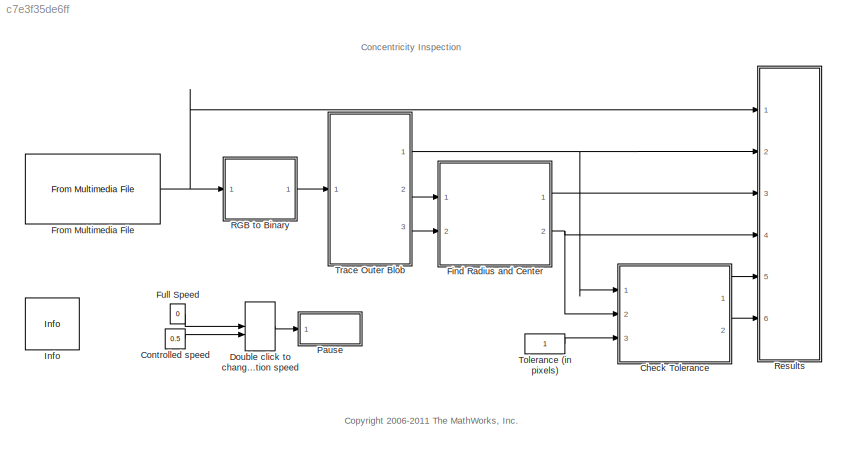
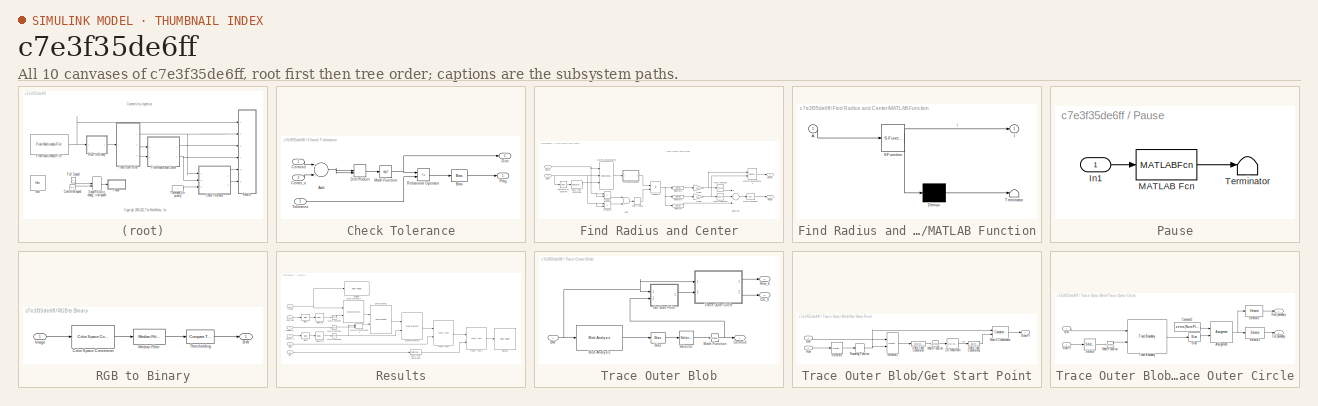
[diagram: thumbnail index - all 10 canvases of the model, root first then tree order]
MODEL slx_c7e3f35de6ff
KIND model
CONFIG AbsTol = auto
CONFIG FixedStep = auto
CONFIG MaxStep = auto
CONFIG MinStep = auto
CONFIG RelTol = 1e-3
CONFIG SampleTimeConstraint = Unconstrained
CONFIG Solver = FixedStepDiscrete
CONFIG SolverMode = Auto
CONFIG SolverName = FixedStepDiscrete
CONFIG StartTime = 0.0
CONFIG StopTime = inf
WORKSPACE source: MATLAB code (in-file)
WORKSPACE NumPts = 250
BLOCK [SubSystem] Check Tolerance
  Ports = [3, 2]
  RequestExecContextInheritance = off
  Variant = off
BLOCK [Sum] Check Tolerance/Add
  InputSameDT = off
  Inputs = +-
  OutDataTypeStr = Inherit: Inherit via internal rule
  Ports = [2, 1]
  SaturateOnIntegerOverflow = off
BLOCK [Bias] Check Tolerance/Bias
  Bias = 1
  SaturateOnIntegerOverflow = off
BLOCK [Inport] Check Tolerance/Center_o
  IconDisplay = Port number
  Port = 2
BLOCK [Inport] Check Tolerance/Centroid
  IconDisplay = Port number
BLOCK [Outport] Check Tolerance/Dist
  IconDisplay = Port number
  Port = 2
BLOCK [DotProduct] Check Tolerance/Dot Product
  OutDataTypeStr = Inherit: Inherit via internal rule
BLOCK [Outport] Check Tolerance/Flag
  IconDisplay = Port number
BLOCK [Math] Check Tolerance/Math Function
  Operator = sqrt
  Ports = [1, 1]
BLOCK [RelationalOperator] Check Tolerance/Relational Operator
  InputSameDT = off
  Operator = <=
  OutDataTypeStr = fixdt(1,32)
  Ports = [2, 1]
BLOCK [Inport] Check Tolerance/Tolerance
  IconDisplay = Port number
  Port = 3
BLOCK [Constant] Controlled speed
  Value = 0.5
  VectorParams1D = off
BLOCK [ManualSwitch] Double click to change the simulation speed
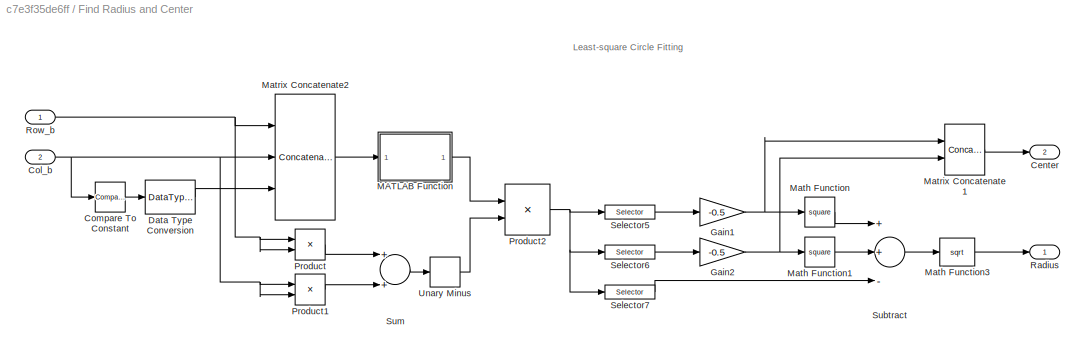
BLOCK [SubSystem] Find Radius and Center
  Ports = [2, 2]
  RequestExecContextInheritance = off
  Variant = off
BLOCK [Outport] Find Radius and Center/Center
  IconDisplay = Port number
  Port = 2
BLOCK [Inport] Find Radius and Center/Col_b
  IconDisplay = Port number
  Port = 2
BLOCK [Reference] Find Radius and Center/Compare To Constant  REF=simulink/Logic and Bit
Operations/Compare
To Constant
  Ports = [1, 1]
  SourceBlock = simulink/Logic and Bit\nOperations/Compare\nTo Constant
  SourceType = Compare To Constant
BLOCK [DataTypeConversion] Find Radius and Center/Data Type Conversion
  RndMeth = Floor
  SaturateOnIntegerOverflow = off
BLOCK [Gain] Find Radius and Center/Gain1
  Gain = -0.5
  OutDataTypeStr = Inherit: Inherit via internal rule
  ParamDataTypeStr = Inherit: Inherit via internal rule
  SaturateOnIntegerOverflow = off
BLOCK [Gain] Find Radius and Center/Gain2
  Gain = -0.5
  OutDataTypeStr = Inherit: Inherit via internal rule
  ParamDataTypeStr = Inherit: Inherit via internal rule
  SaturateOnIntegerOverflow = off
BLOCK [SubSystem] Find Radius and Center/MATLAB Function
  ErrorFcn = Stateflow.Translate.translate
  PermitHierarchicalResolution = ExplicitOnly
  Ports = [1, 1]
  RequestExecContextInheritance = off
  SFBlockType = MATLAB Function
  TreatAsAtomicUnit = on
  Variant = off
BLOCK [Demux] Find Radius and Center/MATLAB Function/ Demux 
  Outputs = 1
  Ports = [1, 1]
BLOCK [S-Function] Find Radius and Center/MATLAB Function/ SFunction 
  EnableBusSupport = off
  FunctionName = sf_sfun
  PortCounts = [1 2]
  Ports = [1, 2]
  SFunctionDeploymentMode = off
  Tag = Stateflow S-Function vipconcentricity 2
BLOCK [Terminator] Find Radius and Center/MATLAB Function/ Terminator 
BLOCK [Inport] Find Radius and Center/MATLAB Function/A
  IconDisplay = Port number
BLOCK [Outport] Find Radius and Center/MATLAB Function/I
  IconDisplay = Port number
BLOCK [Math] Find Radius and Center/Math Function
  Operator = square
  Ports = [1, 1]
BLOCK [Math] Find Radius and Center/Math Function1
  Operator = square
  Ports = [1, 1]
BLOCK [Math] Find Radius and Center/Math Function3
  Operator = sqrt
  Ports = [1, 1]
BLOCK [Concatenate] Find Radius and Center/Matrix Concatenate1
  Mode = Multidimensional array
  Ports = [2, 1]
BLOCK [Concatenate] Find Radius and Center/Matrix Concatenate2
  ConcatenateDimension = 2
  Mode = Multidimensional array
  NumInputs = 3
  Ports = [3, 1]
BLOCK [Product] Find Radius and Center/Product
  InputSameDT = off
  OutDataTypeStr = Inherit: Inherit via internal rule
  Ports = [2, 1]
  SaturateOnIntegerOverflow = off
BLOCK [Product] Find Radius and Center/Product1
  InputSameDT = off
  OutDataTypeStr = Inherit: Inherit via internal rule
  Ports = [2, 1]
  SaturateOnIntegerOverflow = off
BLOCK [Product] Find Radius and Center/Product2
  InputSameDT = off
  Multiplication = Matrix(*)
  OutDataTypeStr = Inherit: Inherit via internal rule
  Ports = [2, 1]
  SaturateOnIntegerOverflow = off
BLOCK [Outport] Find Radius and Center/Radius
  IconDisplay = Port number
BLOCK [Inport] Find Radius and Center/Row_b
  IconDisplay = Port number
BLOCK [Selector] Find Radius and Center/Selector5
  IndexOptions = Index vector (dialog)
  Indices = (1)
  InputPortWidth = 3
  OutputSizes = 1
  Ports = [1, 1]
BLOCK [Selector] Find Radius and Center/Selector6
  IndexOptions = Index vector (dialog)
  Indices = (2)
  InputPortWidth = 3
  OutputSizes = 1
  Ports = [1, 1]
BLOCK [Selector] Find Radius and Center/Selector7
  IndexOptions = Index vector (dialog)
  Indices = (3)
  InputPortWidth = 3
  OutputSizes = 1
  Ports = [1, 1]
BLOCK [Sum] Find Radius and Center/Subtract
  InputSameDT = off
  Inputs = ++-
  OutDataTypeStr = Inherit: Inherit via internal rule
  Ports = [3, 1]
  SaturateOnIntegerOverflow = off
BLOCK [Sum] Find Radius and Center/Sum
  InputSameDT = off
  OutDataTypeStr = Inherit: Inherit via internal rule
  Ports = [2, 1]
  SaturateOnIntegerOverflow = off
BLOCK [UnaryMinus] Find Radius and Center/Unary Minus
BLOCK [Reference] From Multimedia File  REF=dspvision/From Multimedia File
  Ports = [0, 1]
  SourceBlock = dspvision/From Multimedia File
  SourceType = From Multimedia File
BLOCK [Constant] Full Speed
  Value = 0
  VectorParams1D = off
BLOCK [Reference] Info  REF=vipmisc/Info
  Ports = []
  SourceBlock = vipmisc/Info
  SourceType = Info
BLOCK [SubSystem] Pause
  Ports = [1]
  RequestExecContextInheritance = off
  SimViewingDevice = on
  TreatAsAtomicUnit = on
  Variant = off
BLOCK [Inport] Pause/In1
  IconDisplay = Port number
BLOCK [MATLABFcn] Pause/MATLAB Fcn
  MATLABFcn = vipsimdelay(u)
  Ports = [1, 1]
BLOCK [Terminator] Pause/Terminator
BLOCK [SubSystem] RGB to Binary
  Ports = [1, 1]
  RequestExecContextInheritance = off
  Variant = off
BLOCK [Outport] RGB to Binary/BW
  IconDisplay = Port number
BLOCK [Reference] RGB to Binary/Color Space Conversion  REF=visionconversions/Color Space
 Conversion
  Ports = [1, 1]
  SourceBlock = visionconversions/Color Space\n Conversion
  SourceType = Color Space Conversion
BLOCK [Inport] RGB to Binary/Image
  IconDisplay = Port number
BLOCK [Reference] RGB to Binary/Median Filter  REF=visionanalysis/Median Filter
  Ports = [1, 1]
  SourceBlock = visionanalysis/Median Filter
  SourceType = Median Filter
BLOCK [Reference] RGB to Binary/Thresholding  REF=simulink/Logic and Bit
Operations/Compare
To Constant
  Ports = [1, 1]
  SourceBlock = simulink/Logic and Bit\nOperations/Compare\nTo Constant
  SourceType = Compare To Constant
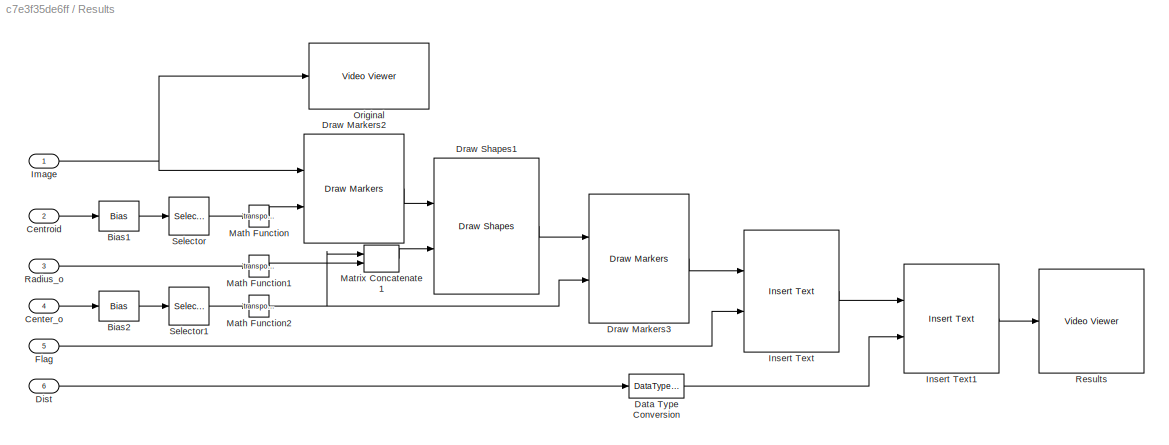
BLOCK [SubSystem] Results
  Ports = [6]
  RequestExecContextInheritance = off
  Variant = off
BLOCK [Bias] Results/Bias1
  Bias = +1
  SaturateOnIntegerOverflow = off
BLOCK [Bias] Results/Bias2
  Bias = +1
  SaturateOnIntegerOverflow = off
BLOCK [Inport] Results/Center_o
  IconDisplay = Port number
  Port = 4
BLOCK [Inport] Results/Centroid
  IconDisplay = Port number
  Port = 2
BLOCK [DataTypeConversion] Results/Data Type Conversion
  OutDataTypeStr = uint8
BLOCK [Inport] Results/Dist
  IconDisplay = Port number
  Port = 6
BLOCK [Reference] Results/Draw Markers2  REF=visiontextngfix/Draw Markers
  Ports = [2, 1]
  SourceBlock = visiontextngfix/Draw Markers
  SourceType = Draw Markers
BLOCK [Reference] Results/Draw Markers3  REF=visiontextngfix/Draw Markers
  Ports = [2, 1]
  SourceBlock = visiontextngfix/Draw Markers
  SourceType = Draw Markers
BLOCK [Reference] Results/Draw Shapes1  REF=visiontextngfix/Draw Shapes
  Ports = [2, 1]
  SourceBlock = visiontextngfix/Draw Shapes
  SourceType = Draw Shapes
BLOCK [Inport] Results/Flag
  IconDisplay = Port number
  Port = 5
BLOCK [Inport] Results/Image
  IconDisplay = Port number
BLOCK [Reference] Results/Insert Text  REF=visiontextngfix/Insert Text
  Ports = [2, 1]
  SourceBlock = visiontextngfix/Insert Text
  SourceType = Insert Text
BLOCK [Reference] Results/Insert Text1  REF=visiontextngfix/Insert Text
  Ports = [2, 1]
  SourceBlock = visiontextngfix/Insert Text
  SourceType = Insert Text
BLOCK [Math] Results/Math Function
  Operator = transpose
  Ports = [1, 1]
BLOCK [Math] Results/Math Function1
  Operator = transpose
  Ports = [1, 1]
BLOCK [Math] Results/Math Function2
  Operator = transpose
  Ports = [1, 1]
BLOCK [Concatenate] Results/Matrix Concatenate1
  ConcatenateDimension = 2
  Mode = Multidimensional array
  Ports = [2, 1]
BLOCK [Reference] Results/Original  REF=visionsinks/Video Viewer
  Ports = [1]
  SourceBlock = visionsinks/Video Viewer
  SourceType = Video Viewer
  UserDataPersistent = on
BLOCK [Inport] Results/Radius_o
  IconDisplay = Port number
  Port = 3
BLOCK [Reference] Results/Results  REF=visionsinks/Video Viewer
  Ports = [1]
  SourceBlock = visionsinks/Video Viewer
  SourceType = Video Viewer
  UserDataPersistent = on
BLOCK [Selector] Results/Selector
  IndexOptions = Index vector (dialog),Select all
  Indices = [2 1],[2 1]
  InputPortWidth = 3
  NumberOfDimensions = 2
  OutputSizes = 1,1
  Ports = [1, 1]
BLOCK [Selector] Results/Selector1
  IndexOptions = Index vector (dialog),Select all
  Indices = [2 1],[2 1]
  InputPortWidth = 3
  NumberOfDimensions = 2
  OutputSizes = 1,1
  Ports = [1, 1]
BLOCK [Constant] Tolerance (in pixels)
  OutDataTypeStr = int32
  VectorParams1D = off
BLOCK [SubSystem] Trace Outer Blob
  Ports = [1, 3]
  RequestExecContextInheritance = off
  Variant = off
BLOCK [Inport] Trace Outer Blob/BW
  IconDisplay = Port number
BLOCK [Bias] Trace Outer Blob/Bias
  Bias = -1
  SaturateOnIntegerOverflow = off
BLOCK [Reference] Trace Outer Blob/Blob Analysis  REF=visionstatistics/Blob Analysis
  Ports = [1, 1]
  SourceBlock = visionstatistics/Blob Analysis
  SourceType = Blob Analysis
  Tag = vipblks_row_conv
BLOCK [Outport] Trace Outer Blob/Centroid
  IconDisplay = Port number
BLOCK [Outport] Trace Outer Blob/Col_b
  IconDisplay = Port number
  Port = 3
BLOCK [SubSystem] Trace Outer Blob/Get Start Point
  Ports = [2, 1]
  RequestExecContextInheritance = off
  Variant = off
BLOCK [Reference] Trace Outer Blob/Get Start Point/2-D Maximum  REF=visionstatistics/2-D Maximum
  Ports = [1, 1]
  SourceBlock = visionstatistics/2-D Maximum
  SourceType = 2-D Maximum
  UserDataPersistent = on
BLOCK [Inport] Trace Outer Blob/Get Start Point/BW
  IconDisplay = Port number
BLOCK [DataTypeConversion] Trace Outer Blob/Get Start Point/Data Type Conversion
  OutDataTypeStr = single
BLOCK [DataTypeConversion] Trace Outer Blob/Get Start Point/Data Type Conversion1
  OutDataTypeStr = single
BLOCK [Math] Trace Outer Blob/Get Start Point/Math Function
  Operator = transpose
  Ports = [1, 1]
BLOCK [Concatenate] Trace Outer Blob/Get Start Point/Matrix Concatenate
  Mode = Multidimensional array
  Ports = [2, 1]
BLOCK [Rounding] Trace Outer Blob/Get Start Point/Rounding Function
BLOCK [Inport] Trace Outer Blob/Get Start Point/Row
  IconDisplay = Port number
  Port = 2
BLOCK [Selector] Trace Outer Blob/Get Start Point/Selector2
  IndexOptions = Index vector (port),Select all
  Indices = (-1),(-1)
  InputPortWidth = 2
  NumberOfDimensions = 2
  OutputSizes = 1
  Ports = [2, 1]
BLOCK [Selector] Trace Outer Blob/Get Start Point/Selector8
  IndexOptions = Index vector (dialog)
  Indices = (1)
  InputPortWidth = 2
  OutputSizes = 1
  Ports = [1, 1]
BLOCK [Outport] Trace Outer Blob/Get Start Point/StartPt
  IconDisplay = Port number
BLOCK [Math] Trace Outer Blob/Math Function
  Operator = transpose
  Ports = [1, 1]
BLOCK [Outport] Trace Outer Blob/Row_b
  IconDisplay = Port number
  Port = 2
BLOCK [Selector] Trace Outer Blob/Selector
  IndexOptions = Select all,Index vector (dialog)
  Indices = [1 3],[2 1]
  InputPortWidth = 3
  NumberOfDimensions = 2
  OutputSizes = 1,1
  Ports = [1, 1]
BLOCK [SubSystem] Trace Outer Blob/Trace Outer Circle
  Ports = [2, 2]
  RequestExecContextInheritance = off
  Variant = off
BLOCK [Assignment] Trace Outer Blob/Trace Outer Circle/Assignment
  IndexOptions = Starting index (dialog),Assign all
  Indices = 1,1
  NumberOfDimensions = 2
  OutputSizes = NumPts,2
  Ports = [2, 1]
BLOCK [Inport] Trace Outer Blob/Trace Outer Circle/BW
  IconDisplay = Port number
BLOCK [Bias] Trace Outer Blob/Trace Outer Circle/Bias
  Bias = -1
  SaturateOnIntegerOverflow = off
BLOCK [Outport] Trace Outer Blob/Trace Outer Circle/Col_boundary
  IconDisplay = Port number
  Port = 2
BLOCK [Constant] Trace Outer Blob/Trace Outer Circle/Constant2
  OutDataTypeStr = single
  Value = zeros(NumPts, 2)
BLOCK [Math] Trace Outer Blob/Trace Outer Circle/Math Function
  Operator = transpose
  Ports = [1, 1]
BLOCK [Outport] Trace Outer Blob/Trace Outer Circle/Row_boundary
  IconDisplay = Port number
BLOCK [Selector] Trace Outer Blob/Trace Outer Circle/Selector
  IndexOptions = Index vector (dialog)
  Indices = [2 1]
  InputPortWidth = 2
  OutputSizes = 1
  Ports = [1, 1]
BLOCK [Selector] Trace Outer Blob/Trace Outer Circle/Selector1
  IndexOptions = Select all,Index vector (dialog)
  Indices = (2:2:(2*NumPts)),1
  InputPortWidth = 2*NumPts
  NumberOfDimensions = 2
  OutputSizes = 1,1
  Ports = [1, 1]
BLOCK [Selector] Trace Outer Blob/Trace Outer Circle/Selector3
  IndexOptions = Select all,Index vector (dialog)
  Indices = (2:2:(2*NumPts)),2
  InputPortWidth = 2*NumPts
  NumberOfDimensions = 2
  OutputSizes = 1,1
  Ports = [1, 1]
BLOCK [Inport] Trace Outer Blob/Trace Outer Circle/StartPt
  IconDisplay = Port number
  Port = 2
BLOCK [Reference] Trace Outer Blob/Trace Outer Circle/Trace Boundary  REF=visionanalysis/Trace Boundary
  Ports = [2, 1]
  SourceBlock = visionanalysis/Trace Boundary
  SourceType = Trace Boundary
ANNOTATION (root): Concentricity Inspection
ANNOTATION (root): <copyright redacted>
ANNOTATION Find Radius and Center: Least-square Circle Fitting
NET Check Tolerance/Add:1 -> Check Tolerance/Dot Product:1, Check Tolerance/Dot Product:2
LINE Check Tolerance/Bias:1 -> Check Tolerance/Flag:1
LINE Check Tolerance/Center_o:1 -> Check Tolerance/Add:2
LINE Check Tolerance/Centroid:1 -> Check Tolerance/Add:1
LINE Check Tolerance/Dot Product:1 -> Check Tolerance/Math Function:1
NET Check Tolerance/Math Function:1 -> Check Tolerance/Dist:1, Check Tolerance/Relational Operator:1
LINE Check Tolerance/Relational Operator:1 -> Check Tolerance/Bias:1
LINE Check Tolerance/Tolerance:1 -> Check Tolerance/Relational Operator:2
LINE Check Tolerance:1 -> Results:5
LINE Check Tolerance:2 -> Results:6
LINE Controlled speed:1 -> Double click to change the simulation speed:2
LINE Double click to change the simulation speed:1 -> Pause:1
NET Find Radius and Center/Col_b:1 -> Find Radius and Center/Compare To Constant:1, Find Radius and Center/Matrix Concatenate2:2, Find Radius and Center/Product1:1, Find Radius and Center/Product1:2
LINE Find Radius and Center/Compare To Constant:1 -> Find Radius and Center/Data Type Conversion:1
LINE Find Radius and Center/Data Type Conversion:1 -> Find Radius and Center/Matrix Concatenate2:3
NET Find Radius and Center/Gain1:1 -> Find Radius and Center/Math Function:1, Find Radius and Center/Matrix Concatenate1:1
NET Find Radius and Center/Gain2:1 -> Find Radius and Center/Math Function1:1, Find Radius and Center/Matrix Concatenate1:2
LINE Find Radius and Center/MATLAB Function:1 -> Find Radius and Center/Product2:1
LINE Find Radius and Center/Math Function1:1 -> Find Radius and Center/Subtract:2
LINE Find Radius and Center/Math Function3:1 -> Find Radius and Center/Radius:1
LINE Find Radius and Center/Math Function:1 -> Find Radius and Center/Subtract:1
LINE Find Radius and Center/Matrix Concatenate1:1 -> Find Radius and Center/Center:1
LINE Find Radius and Center/Matrix Concatenate2:1 -> Find Radius and Center/MATLAB Function:1
LINE Find Radius and Center/Product1:1 -> Find Radius and Center/Sum:2
NET Find Radius and Center/Product2:1 -> Find Radius and Center/Selector5:1, Find Radius and Center/Selector6:1, Find Radius and Center/Selector7:1
LINE Find Radius and Center/Product:1 -> Find Radius and Center/Sum:1
NET Find Radius and Center/Row_b:1 -> Find Radius and Center/Matrix Concatenate2:1, Find Radius and Center/Product:1, Find Radius and Center/Product:2
LINE Find Radius and Center/Selector5:1 -> Find Radius and Center/Gain1:1
LINE Find Radius and Center/Selector6:1 -> Find Radius and Center/Gain2:1
LINE Find Radius and Center/Selector7:1 -> Find Radius and Center/Subtract:3
LINE Find Radius and Center/Subtract:1 -> Find Radius and Center/Math Function3:1
LINE Find Radius and Center/Sum:1 -> Find Radius and Center/Unary Minus:1
LINE Find Radius and Center/Unary Minus:1 -> Find Radius and Center/Product2:2
LINE Find Radius and Center:1 -> Results:3
NET Find Radius and Center:2 -> Check Tolerance:2, Results:4
NET From Multimedia File:1 -> RGB to Binary:1, Results:1
LINE Full Speed:1 -> Double click to change the simulation speed:1
LINE Pause/In1:1 -> Pause/MATLAB Fcn:1
LINE Pause/MATLAB Fcn:1 -> Pause/Terminator:1
LINE RGB to Binary/Color Space Conversion:1 -> RGB to Binary/Median Filter:1
LINE RGB to Binary/Image:1 -> RGB to Binary/Color Space Conversion:1
LINE RGB to Binary/Median Filter:1 -> RGB to Binary/Thresholding:1
LINE RGB to Binary/Thresholding:1 -> RGB to Binary/BW:1
LINE RGB to Binary:1 -> Trace Outer Blob:1
LINE Results/Bias1:1 -> Results/Selector:1
LINE Results/Bias2:1 -> Results/Selector1:1
LINE Results/Center_o:1 -> Results/Bias2:1
LINE Results/Centroid:1 -> Results/Bias1:1
LINE Results/Data Type Conversion:1 -> Results/Insert Text1:2
LINE Results/Dist:1 -> Results/Data Type Conversion:1
LINE Results/Draw Markers2:1 -> Results/Draw Shapes1:1
LINE Results/Draw Markers3:1 -> Results/Insert Text:1
LINE Results/Draw Shapes1:1 -> Results/Draw Markers3:1
LINE Results/Flag:1 -> Results/Insert Text:2
NET Results/Image:1 -> Results/Draw Markers2:1, Results/Original:1
LINE Results/Insert Text1:1 -> Results/Results:1
LINE Results/Insert Text:1 -> Results/Insert Text1:1
LINE Results/Math Function1:1 -> Results/Matrix Concatenate1:2
NET Results/Math Function2:1 -> Results/Draw Markers3:2, Results/Matrix Concatenate1:1
LINE Results/Math Function:1 -> Results/Draw Markers2:2
LINE Results/Matrix Concatenate1:1 -> Results/Draw Shapes1:2
LINE Results/Radius_o:1 -> Results/Math Function1:1
LINE Results/Selector1:1 -> Results/Math Function2:1
LINE Results/Selector:1 -> Results/Math Function:1
LINE Tolerance (in pixels):1 -> Check Tolerance:3
NET Trace Outer Blob/BW:1 -> Trace Outer Blob/Blob Analysis:1, Trace Outer Blob/Get Start Point:1, Trace Outer Blob/Trace Outer Circle:1
LINE Trace Outer Blob/Bias:1 -> Trace Outer Blob/Selector:1
LINE Trace Outer Blob/Blob Analysis:1 -> Trace Outer Blob/Bias:1
LINE Trace Outer Blob/Get Start Point/2-D Maximum:1 -> Trace Outer Blob/Get Start Point/Data Type Conversion1:1
LINE Trace Outer Blob/Get Start Point/BW:1 -> Trace Outer Blob/Get Start Point/Selector2:1
LINE Trace Outer Blob/Get Start Point/Data Type Conversion1:1 -> Trace Outer Blob/Get Start Point/Matrix Concatenate:2
LINE Trace Outer Blob/Get Start Point/Data Type Conversion:1 -> Trace Outer Blob/Get Start Point/Math Function:1
LINE Trace Outer Blob/Get Start Point/Math Function:1 -> Trace Outer Blob/Get Start Point/2-D Maximum:1
LINE Trace Outer Blob/Get Start Point/Matrix Concatenate:1 -> Trace Outer Blob/Get Start Point/StartPt:1
NET Trace Outer Blob/Get Start Point/Rounding Function:1 -> Trace Outer Blob/Get Start Point/Matrix Concatenate:1, Trace Outer Blob/Get Start Point/Selector2:2
LINE Trace Outer Blob/Get Start Point/Row:1 -> Trace Outer Blob/Get Start Point/Selector8:1
LINE Trace Outer Blob/Get Start Point/Selector2:1 -> Trace Outer Blob/Get Start Point/Data Type Conversion:1
LINE Trace Outer Blob/Get Start Point/Selector8:1 -> Trace Outer Blob/Get Start Point/Rounding Function:1
LINE Trace Outer Blob/Get Start Point:1 -> Trace Outer Blob/Trace Outer Circle:2
NET Trace Outer Blob/Math Function:1 -> Trace Outer Blob/Centroid:1, Trace Outer Blob/Get Start Point:2
LINE Trace Outer Blob/Selector:1 -> Trace Outer Blob/Math Function:1
NET Trace Outer Blob/Trace Outer Circle/Assignment:1 -> Trace Outer Blob/Trace Outer Circle/Selector1:1, Trace Outer Blob/Trace Outer Circle/Selector3:1
LINE Trace Outer Blob/Trace Outer Circle/BW:1 -> Trace Outer Blob/Trace Outer Circle/Trace Boundary:1
LINE Trace Outer Blob/Trace Outer Circle/Bias:1 -> Trace Outer Blob/Trace Outer Circle/Assignment:2
LINE Trace Outer Blob/Trace Outer Circle/Constant2:1 -> Trace Outer Blob/Trace Outer Circle/Assignment:1
LINE Trace Outer Blob/Trace Outer Circle/Math Function:1 -> Trace Outer Blob/Trace Outer Circle/Trace Boundary:2
LINE Trace Outer Blob/Trace Outer Circle/Selector1:1 -> Trace Outer Blob/Trace Outer Circle/Col_boundary:1
LINE Trace Outer Blob/Trace Outer Circle/Selector3:1 -> Trace Outer Blob/Trace Outer Circle/Row_boundary:1
LINE Trace Outer Blob/Trace Outer Circle/Selector:1 -> Trace Outer Blob/Trace Outer Circle/Math Function:1
LINE Trace Outer Blob/Trace Outer Circle/StartPt:1 -> Trace Outer Blob/Trace Outer Circle/Selector:1
LINE Trace Outer Blob/Trace Outer Circle/Trace Boundary:1 -> Trace Outer Blob/Trace Outer Circle/Bias:1
LINE Trace Outer Blob/Trace Outer Circle:1 -> Trace Outer Blob/Row_b:1
LINE Trace Outer Blob/Trace Outer Circle:2 -> Trace Outer Blob/Col_b:1
NET Trace Outer Blob:1 -> Check Tolerance:1, Results:2
LINE Trace Outer Blob:2 -> Find Radius and Center:1
LINE Trace Outer Blob:3 -> Find Radius and Center:2
note: NET lines group one-source signal fan-out (src -> all destinations, sorted); 1:1 wires keep LINE
CHART Find Radius and Center/MATLAB Function states=1 transitions=1
  STATE_LABEL 'eML_blk_kernel()'
  STATE_LABEL 'SCRIPT:\nfunction I = pinv(A)\n%#codegen\n\nI = pinv(A);'
